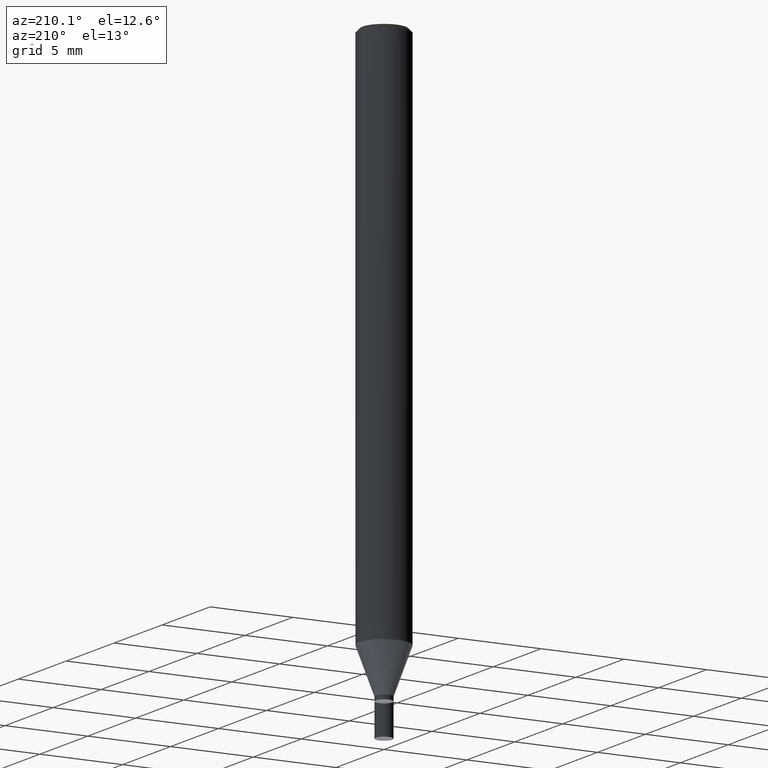
[diagram: clean part render]
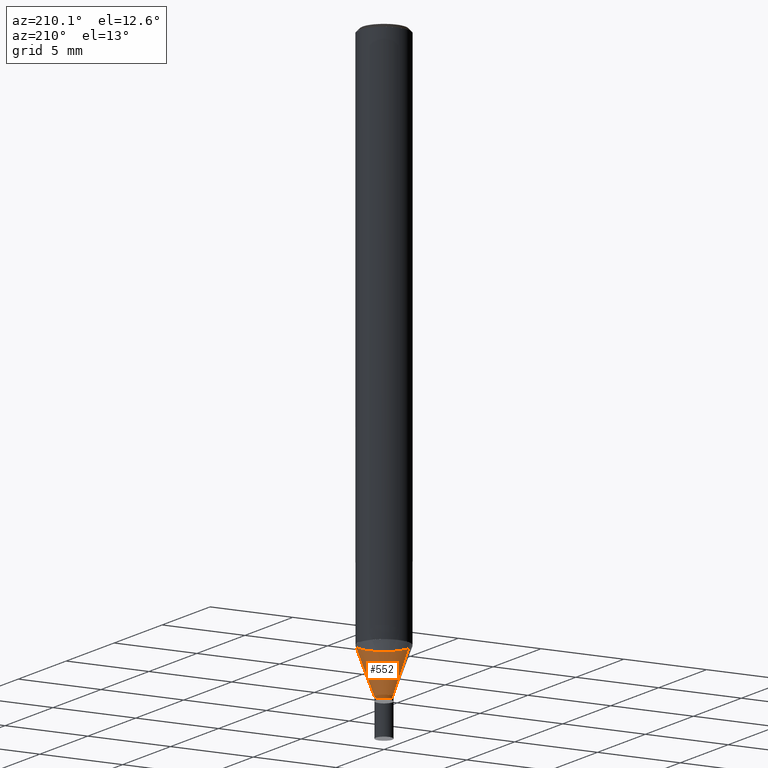
[diagram: same view with one face highlighted and labeled with its STEP entity id]
A machine part, auxiliary view. The second image highlights one B-rep face of the part: STEP entity #552.
In plain terms, the highlighted face is a freeform B-spline surface patch.
Its self-contained STEP definition (entity closure, byte-faithful):
#350=CARTESIAN_POINT('',(0.5,0.0,-2.747477419455));
#351=CARTESIAN_POINT('',(0.5,0.5,-2.747477419455));
#352=CARTESIAN_POINT('',(0.0,0.5,-2.747477419455));
#353=CARTESIAN_POINT('',(-0.5,0.5,-2.747477419455));
#354=CARTESIAN_POINT('',(-0.5,0.0,-2.747477419455));
#355=CARTESIAN_POINT('',(1.5,0.0,0.0));
#356=CARTESIAN_POINT('',(1.5,1.5,0.0));
#357=CARTESIAN_POINT('',(0.0,1.5,0.0));
#358=CARTESIAN_POINT('',(-1.5,1.5,0.0));
#359=CARTESIAN_POINT('',(-1.5,0.0,0.0));
#533=(
BOUNDED_SURFACE()
B_SPLINE_SURFACE(1,2,(
(#350,#351,#352,#353,#354),
(#355,#356,#357,#358,#359)
), .UNSPECIFIED.,.F.,.F.,.F.)
B_SPLINE_SURFACE_WITH_KNOTS((2,2),(3,2,3),(
0.0,1.0),(
0.0,0.5,1.0), .UNSPECIFIED.)
GEOMETRIC_REPRESENTATION_ITEM()
RATIONAL_B_SPLINE_SURFACE(((1.0,0.707106781187,1.0,0.707106781187,1.0),
(1.0,0.707106781187,1.0,0.707106781187,1.0)
))
REPRESENTATION_ITEM('')
SURFACE()
);
#534=(
BOUNDED_CURVE()
B_SPLINE_CURVE(2,(#354,#353,#352,#351,#350),.UNSPECIFIED.,.F.,.F.)
B_SPLINE_CURVE_WITH_KNOTS((3,2,3),
(0.0,0.5,1.0),.UNSPECIFIED.)
CURVE()
GEOMETRIC_REPRESENTATION_ITEM()
RATIONAL_B_SPLINE_CURVE((1.0,0.707106781187,1.0,0.707106781187,1.0))
REPRESENTATION_ITEM('')
);
#535=(
BOUNDED_CURVE()
B_SPLINE_CURVE(1,(#350,#355),.UNSPECIFIED.,.F.,.F.)
B_SPLINE_CURVE_WITH_KNOTS((2,2),
(0.0,1.0),.UNSPECIFIED.)
CURVE()
GEOMETRIC_REPRESENTATION_ITEM()
RATIONAL_B_SPLINE_CURVE((1.0,1.0))
REPRESENTATION_ITEM('')
);
#536=(
BOUNDED_CURVE()
B_SPLINE_CURVE(2,(#355,#356,#357,#358,#359),.UNSPECIFIED.,.F.,.F.)
B_SPLINE_CURVE_WITH_KNOTS((3,2,3),
(0.0,0.5,1.0),.UNSPECIFIED.)
CURVE()
GEOMETRIC_REPRESENTATION_ITEM()
RATIONAL_B_SPLINE_CURVE((1.0,0.707106781187,1.0,0.707106781187,1.0))
REPRESENTATION_ITEM('')
);
#537=(
BOUNDED_CURVE()
B_SPLINE_CURVE(1,(#359,#354),.UNSPECIFIED.,.F.,.F.)
B_SPLINE_CURVE_WITH_KNOTS((2,2),
(0.0,1.0),.UNSPECIFIED.)
CURVE()
GEOMETRIC_REPRESENTATION_ITEM()
RATIONAL_B_SPLINE_CURVE((1.0,1.0))
REPRESENTATION_ITEM('')
);
#538=VERTEX_POINT('',#350);
#539=VERTEX_POINT('',#354);
#540=VERTEX_POINT('',#355);
#541=VERTEX_POINT('',#359);
#542=EDGE_CURVE('',#539,#538,#534,.T.);
#543=EDGE_CURVE('',#538,#540,#535,.T.);
#544=EDGE_CURVE('',#540,#541,#536,.T.);
#545=EDGE_CURVE('',#541,#539,#537,.T.);
#546=ORIENTED_EDGE('',*,*,#542,.T.);
#547=ORIENTED_EDGE('',*,*,#543,.T.);
#548=ORIENTED_EDGE('',*,*,#544,.T.);
#549=ORIENTED_EDGE('',*,*,#545,.T.);
#550=EDGE_LOOP('',(#546,#547,#548,#549));
#551=FACE_OUTER_BOUND('',#550,.T.);
#552=ADVANCED_FACE('',(#551),#533,.T.);